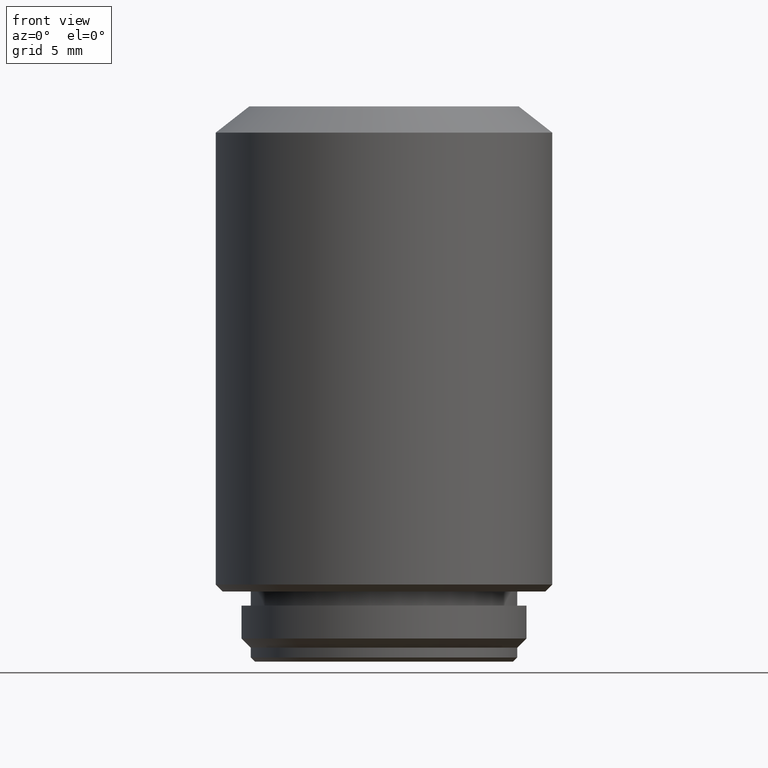
[diagram: clean part render]
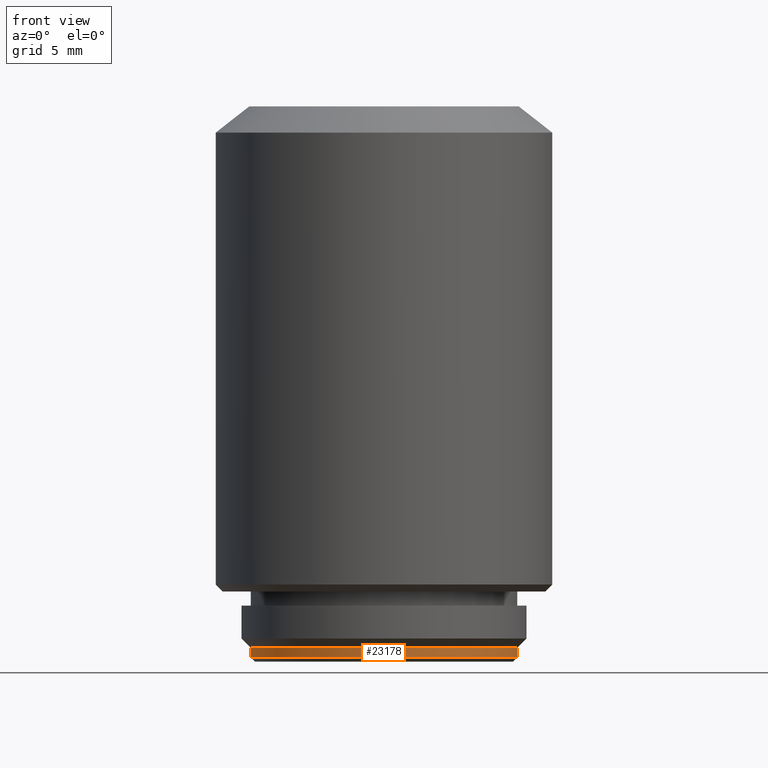
[diagram: same view with one face highlighted and labeled with its STEP entity id]
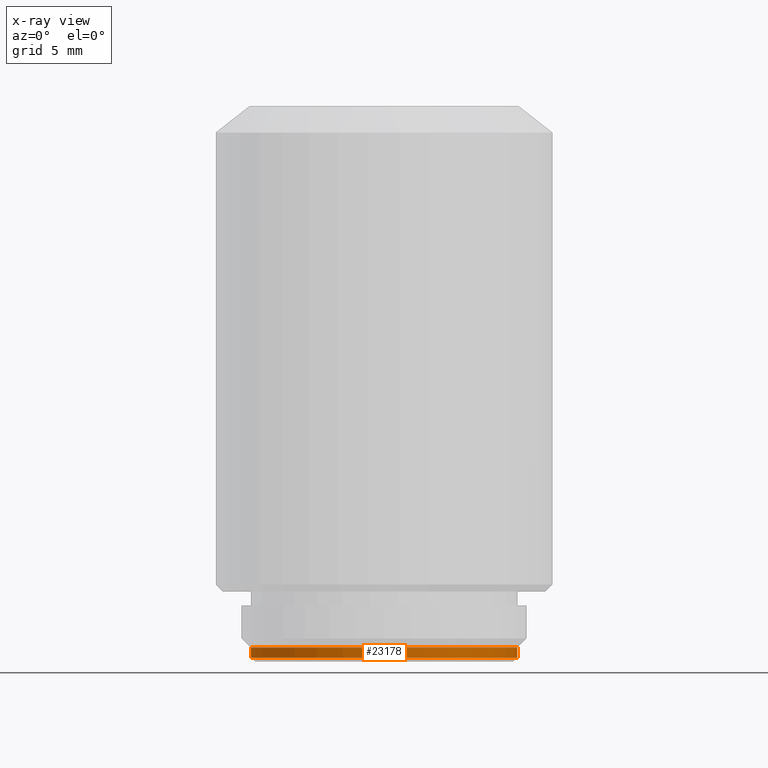
[diagram: x-ray of the same camera — body ghosted, the highlighted face saturated]
A machine part, front view. The second image highlights one B-rep face of the part: STEP entity #23178.
The next image is the same camera in x-ray: the body ghosted, the highlighted face saturated — about 0% of this face is hidden behind the body in this view.
In plain terms, the highlighted cylindrical surface (partial cylindrical patch) has radius 9.5 mm, axis along (0, 0, -1).
Its self-contained STEP definition (entity closure, byte-faithful):
#540 = AXIS2_PLACEMENT_3D ( 'NONE', #21309, #23063, #13856 ) ;
#681 = CIRCLE ( 'NONE', #10183, 9.500000000000000000 ) ;
#1640 = DIRECTION ( 'NONE',  ( 0.000000000000000000, 0.000000000000000000, 1.000000000000000000 ) ) ;
#2341 = ORIENTED_EDGE ( 'NONE', *, *, #22870, .F. ) ;
#2538 = CARTESIAN_POINT ( 'NONE',  ( -9.500000000000007105, 1.163414459189986274E-15, 0.3000000000000069833 ) ) ;
#2919 = DIRECTION ( 'NONE',  ( 0.000000000000000000, 0.000000000000000000, -1.000000000000000000 ) ) ;
#3096 = VERTEX_POINT ( 'NONE', #2538 ) ;
#3643 = AXIS2_PLACEMENT_3D ( 'NONE', #14530, #10555, #18115 ) ;
#3737 = VERTEX_POINT ( 'NONE', #22489 ) ;
#3754 = EDGE_LOOP ( 'NONE', ( #2341, #16284, #12282, #8895 ) ) ;
#4440 = CIRCLE ( 'NONE', #540, 9.500000000000000000 ) ;
#7456 = CARTESIAN_POINT ( 'NONE',  ( 0.000000000000000000, 0.000000000000000000, 0.3000000000000069833 ) ) ;
#7995 = VECTOR ( 'NONE', #2919, 1000.000000000000000 ) ;
#8205 = DIRECTION ( 'NONE',  ( 0.000000000000000000, 0.000000000000000000, -1.000000000000000000 ) ) ;
#8895 = ORIENTED_EDGE ( 'NONE', *, *, #19357, .T. ) ;
#10072 = CARTESIAN_POINT ( 'NONE',  ( -9.500000000000000000, 0.000000000000000000, 1.000000000000000000 ) ) ;
#10183 = AXIS2_PLACEMENT_3D ( 'NONE', #7456, #1640, #24360 ) ;
#10368 = CARTESIAN_POINT ( 'NONE',  ( 9.500000000000000000, 1.163414459189985485E-15, 1.000000000000000000 ) ) ;
#10555 = DIRECTION ( 'NONE',  ( 0.000000000000000000, 0.000000000000000000, -1.000000000000000000 ) ) ;
#10620 = VERTEX_POINT ( 'NONE', #19103 ) ;
#12282 = ORIENTED_EDGE ( 'NONE', *, *, #22424, .T. ) ;
#12346 = LINE ( 'NONE', #10368, #7995 ) ;
#12533 = CYLINDRICAL_SURFACE ( 'NONE', #3643, 9.500000000000000000 ) ;
#13856 = DIRECTION ( 'NONE',  ( -1.000000000000000000, 0.000000000000000000, 0.000000000000000000 ) ) ;
#14530 = CARTESIAN_POINT ( 'NONE',  ( 0.000000000000000000, 0.000000000000000000, 1.000000000000000000 ) ) ;
#15768 = CARTESIAN_POINT ( 'NONE',  ( -9.500000000000000000, 0.000000000000000000, 1.000000000000000000 ) ) ;
#16284 = ORIENTED_EDGE ( 'NONE', *, *, #23937, .T. ) ;
#17534 = VERTEX_POINT ( 'NONE', #15768 ) ;
#18115 = DIRECTION ( 'NONE',  ( -1.000000000000000000, 0.000000000000000000, 0.000000000000000000 ) ) ;
#19103 = CARTESIAN_POINT ( 'NONE',  ( 9.500000000000007105, 0.000000000000000000, 0.3000000000000069833 ) ) ;
#19357 = EDGE_CURVE ( 'NONE', #3096, #10620, #681, .T. ) ;
#19555 = VECTOR ( 'NONE', #8205, 1000.000000000000000 ) ;
#19742 = LINE ( 'NONE', #10072, #19555 ) ;
#20363 = FACE_OUTER_BOUND ( 'NONE', #3754, .T. ) ;
#21309 = CARTESIAN_POINT ( 'NONE',  ( 0.000000000000000000, 0.000000000000000000, 1.000000000000000000 ) ) ;
#22424 = EDGE_CURVE ( 'NONE', #17534, #3096, #19742, .T. ) ;
#22489 = CARTESIAN_POINT ( 'NONE',  ( 9.500000000000000000, 1.163414459189985485E-15, 1.000000000000000000 ) ) ;
#22870 = EDGE_CURVE ( 'NONE', #3737, #10620, #12346, .T. ) ;
#23063 = DIRECTION ( 'NONE',  ( 0.000000000000000000, 0.000000000000000000, -1.000000000000000000 ) ) ;
#23178 = ADVANCED_FACE ( 'NONE', ( #20363 ), #12533, .T. ) ;
#23937 = EDGE_CURVE ( 'NONE', #3737, #17534, #4440, .T. ) ;
#24360 = DIRECTION ( 'NONE',  ( 1.000000000000000000, 0.000000000000000000, 0.000000000000000000 ) ) ;